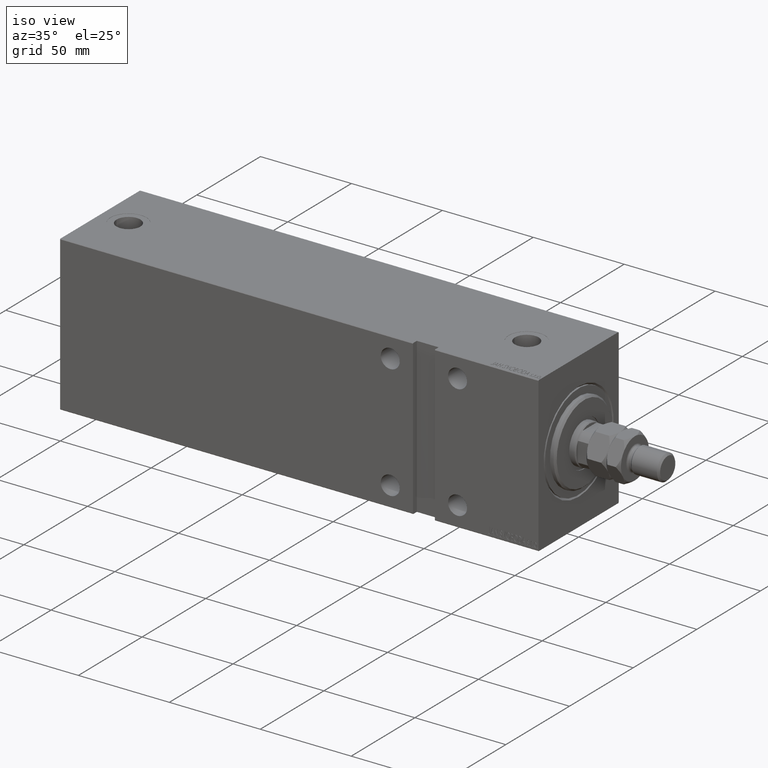
[diagram: clean part render]
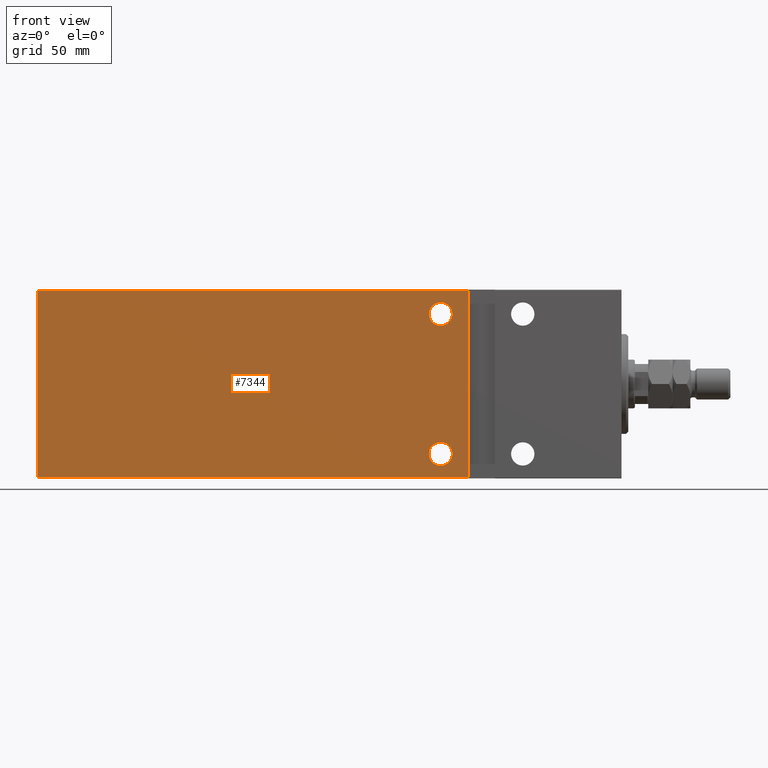
[diagram: tour spotlight — one face highlighted and labeled with its STEP entity id]
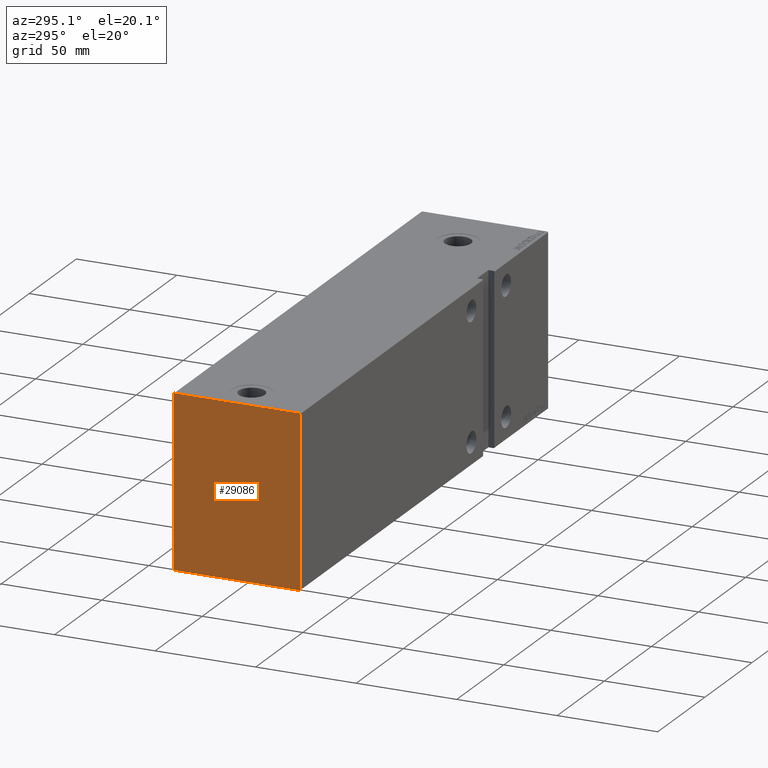
[diagram: tour spotlight — one face highlighted and labeled with its STEP entity id]
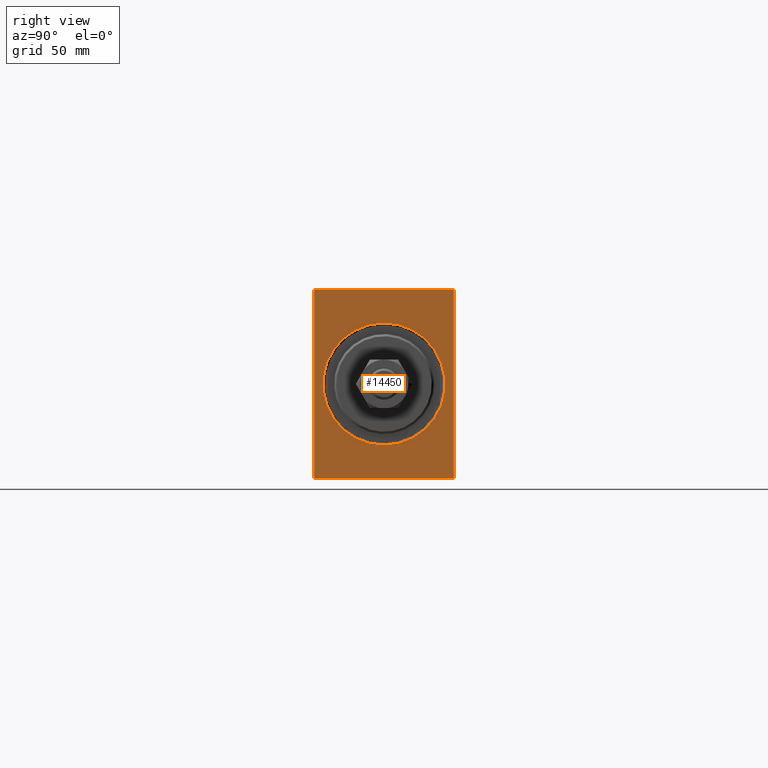
[diagram: tour spotlight — one face highlighted and labeled with its STEP entity id]
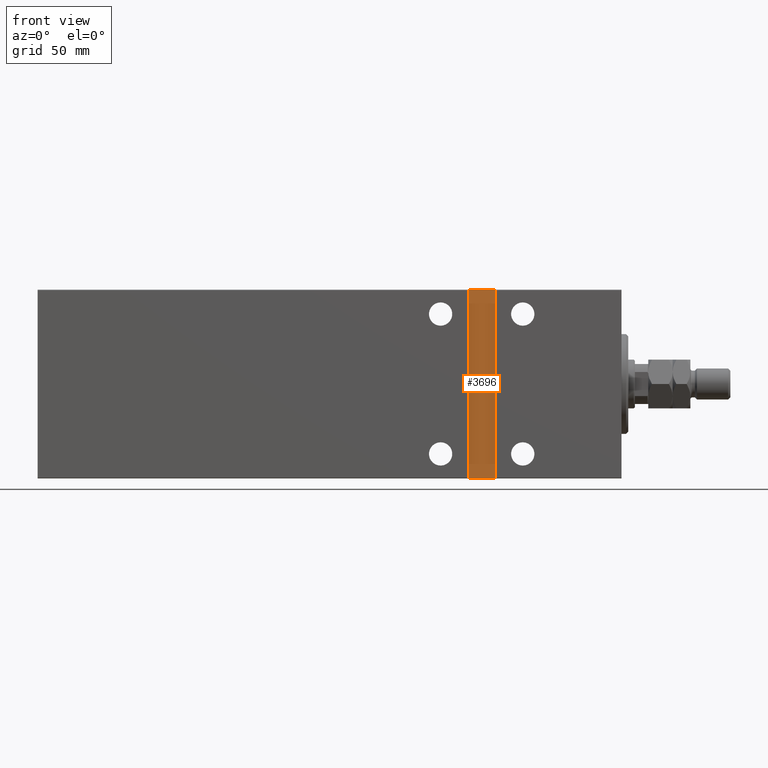
[diagram: tour spotlight — one face highlighted and labeled with its STEP entity id]
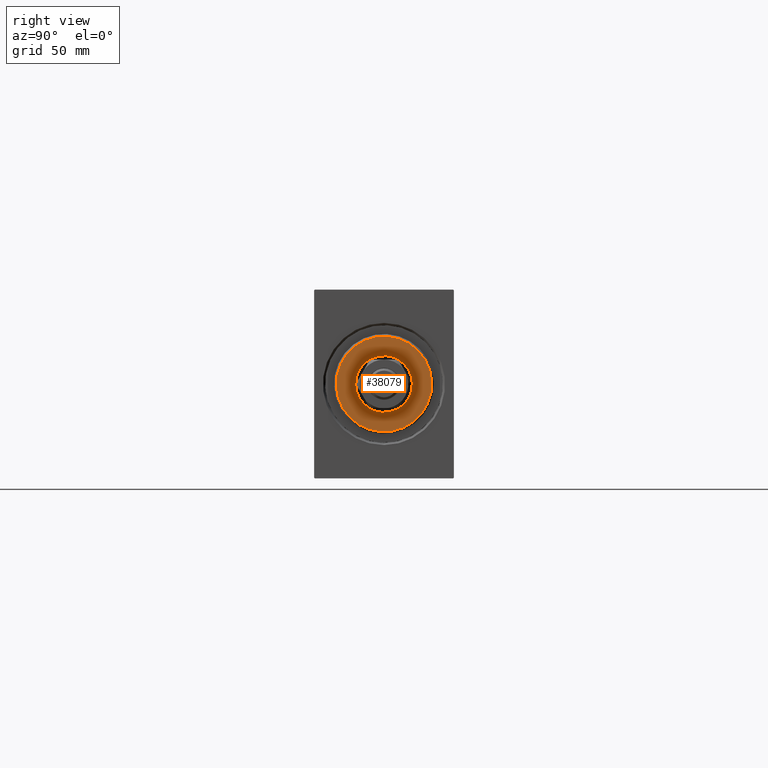
[diagram: tour spotlight — one face highlighted and labeled with its STEP entity id]
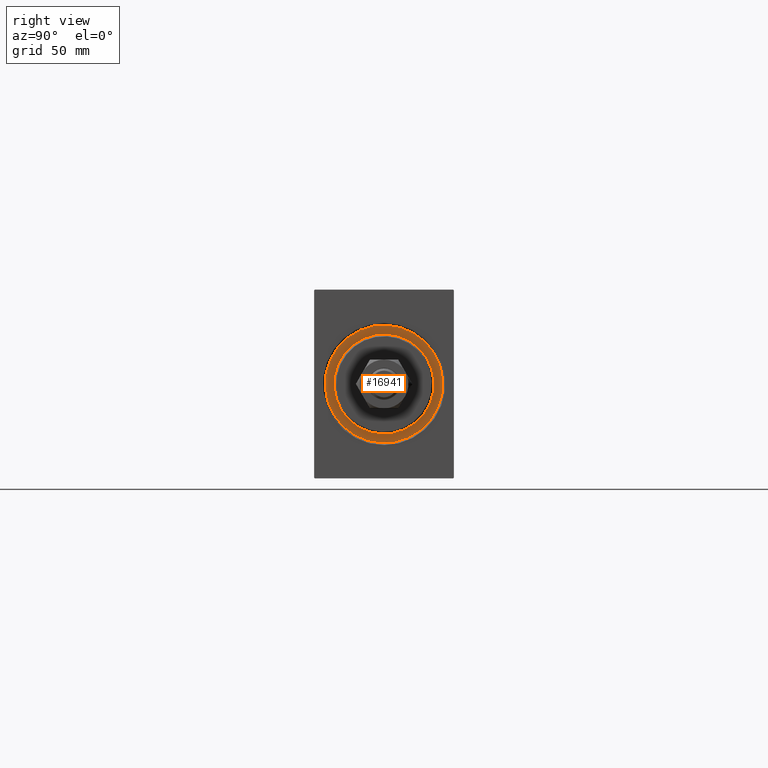
[diagram: tour spotlight — one face highlighted and labeled with its STEP entity id]
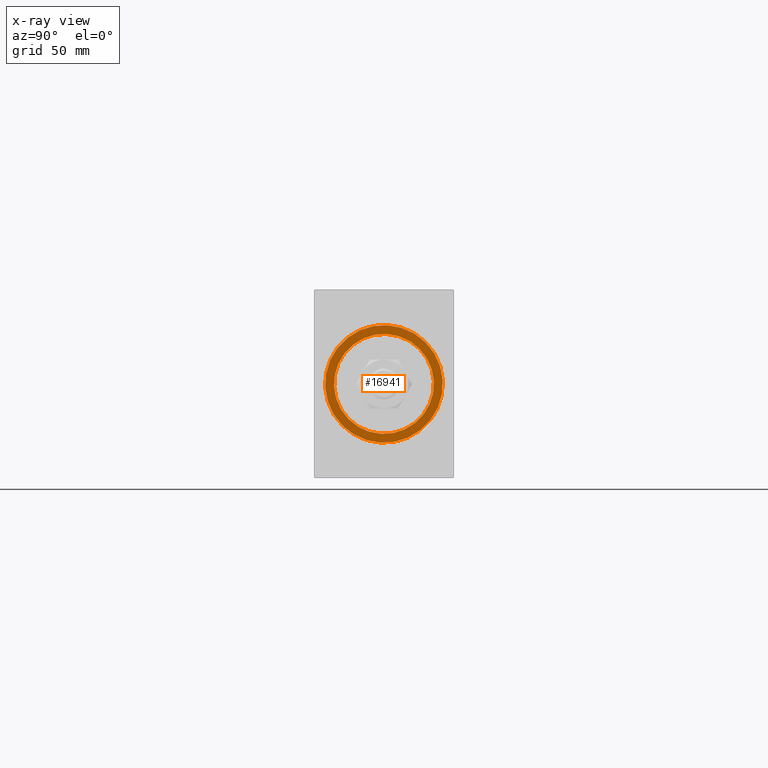
[diagram: x-ray of the same camera — body ghosted, this tour face saturated]
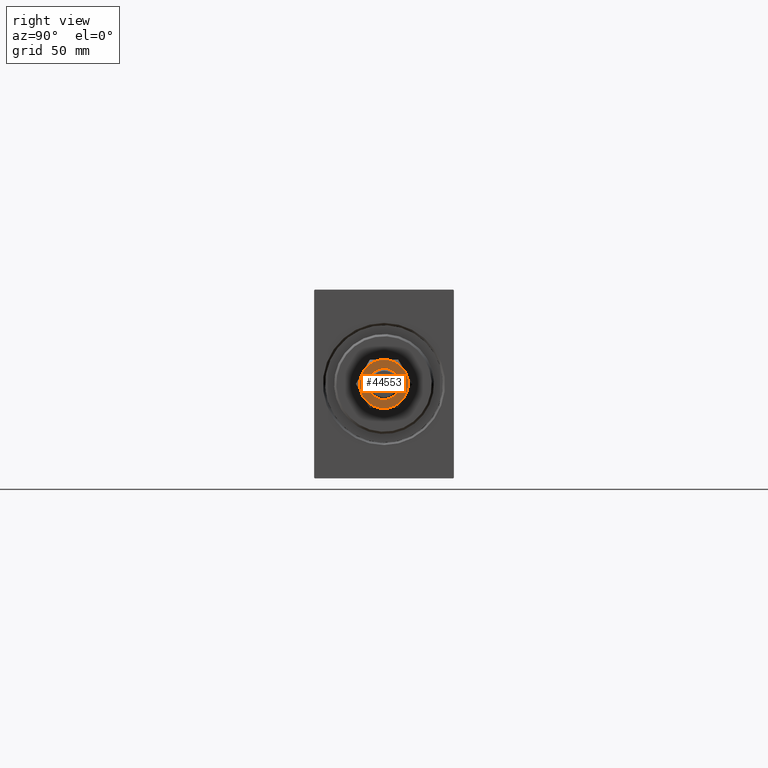
[diagram: tour spotlight — one face highlighted and labeled with its STEP entity id]
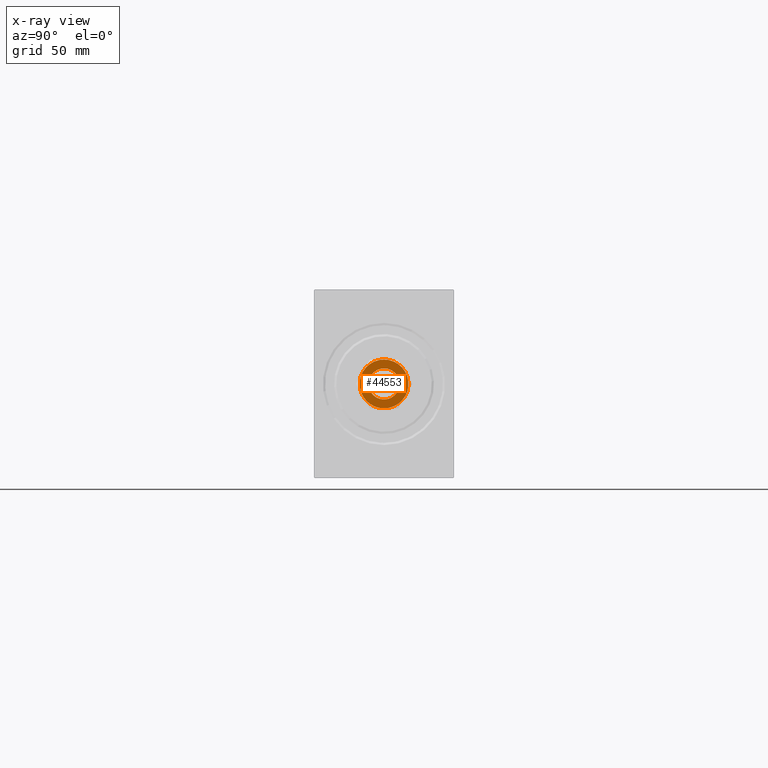
[diagram: x-ray of the same camera — body ghosted, this tour face saturated]
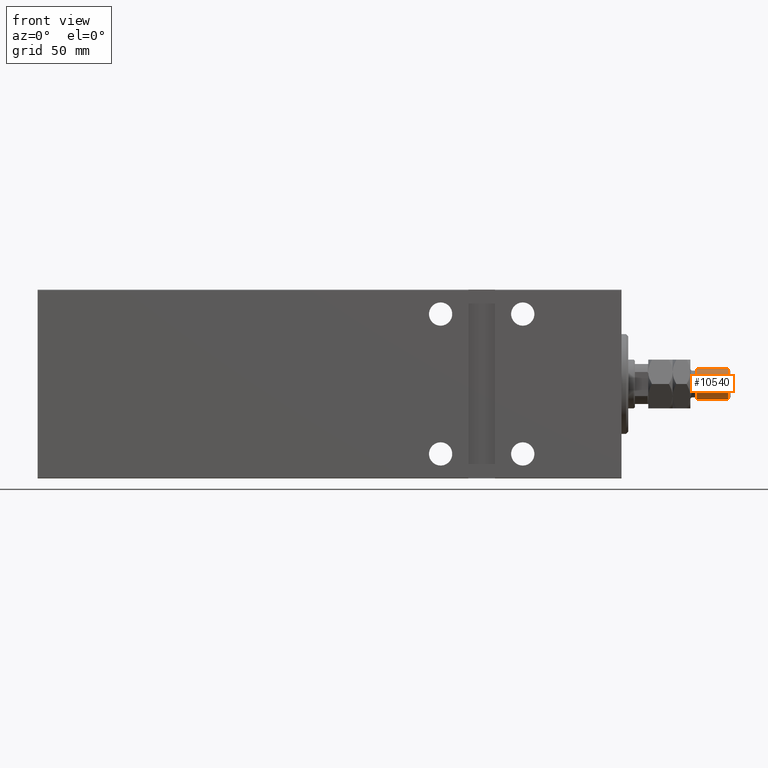
[diagram: tour spotlight — one face highlighted and labeled with its STEP entity id]
A machine part: a face-by-face anatomy tour. The part has 946 B-rep faces; the first image is the clean iso view, then the 8 largest visible faces are spotlighted one at a time (largest first), each with its STEP entity span.

Face 1 — front view, entity #7344. In plain terms, the highlighted planar face has unit normal (-0, 1, -0).
Definition (entity closure, byte-faithful):
#1 = ORIENTED_EDGE ( 'NONE', *, *, #32738, .F. ) ;
#102 = CIRCLE ( 'NONE', #12617, 5.250000000000004441 ) ;
#273 = CARTESIAN_POINT ( 'NONE',  ( 81.49999999999998579, 31.50000000000002842, 36.74999999999999289 ) ) ;
#414 = VERTEX_POINT ( 'NONE', #42294 ) ;
#661 = DIRECTION ( 'NONE',  ( -1.000000000000000000, 0.000000000000000000, 0.000000000000000000 ) ) ;
#1170 = ORIENTED_EDGE ( 'NONE', *, *, #9563, .F. ) ;
#1585 = DIRECTION ( 'NONE',  ( 0.000000000000000000, 0.000000000000000000, 1.000000000000000000 ) ) ;
#1894 = DIRECTION ( 'NONE',  ( 0.000000000000000000, 0.000000000000000000, 1.000000000000000000 ) ) ;
#1980 = DIRECTION ( 'NONE',  ( 0.000000000000000000, 0.000000000000000000, 1.000000000000000000 ) ) ;
#2084 = DIRECTION ( 'NONE',  ( 0.000000000000000000, -1.000000000000000000, -8.163404592832030268E-17 ) ) ;
#3157 = DIRECTION ( 'NONE',  ( 0.000000000000000000, 0.000000000000000000, 1.000000000000000000 ) ) ;
#4521 = VECTOR ( 'NONE', #9454, 1000.000000000000000 ) ;
#4669 = CARTESIAN_POINT ( 'NONE',  ( 69.00000000000001421, 31.50000000000000711, 42.50000000000000711 ) ) ;
#4800 = CARTESIAN_POINT ( 'NONE',  ( 263.0000000000000000, 31.50000000000000711, -42.20000000000001705 ) ) ;
#4820 = VERTEX_POINT ( 'NONE', #24375 ) ;
#5125 = ORIENTED_EDGE ( 'NONE', *, *, #13815, .F. ) ;
#5304 = CARTESIAN_POINT ( 'NONE',  ( 263.0000000000000000, 31.50000000000000711, -42.50000000000000711 ) ) ;
#5324 = CIRCLE ( 'NONE', #33283, 5.250000000000004441 ) ;
#6205 = DIRECTION ( 'NONE',  ( 0.000000000000000000, 8.163404592832030268E-17, -1.000000000000000000 ) ) ;
#6404 = EDGE_CURVE ( 'NONE', #10043, #25531, #14752, .T. ) ;
#7022 = AXIS2_PLACEMENT_3D ( 'NONE', #13472, #34438, #1980 ) ;
#7344 = ADVANCED_FACE ( 'NONE', ( #19576, #40543, #44667 ), #44219, .F. ) ;
#9454 = DIRECTION ( 'NONE',  ( 1.000000000000000000, 0.000000000000000000, 0.000000000000000000 ) ) ;
#9563 = EDGE_CURVE ( 'NONE', #16460, #15773, #16211, .T. ) ;
#10043 = VERTEX_POINT ( 'NONE', #33464 ) ;
#11431 = CIRCLE ( 'NONE', #7022, 5.250000000000004441 ) ;
#12617 = AXIS2_PLACEMENT_3D ( 'NONE', #26751, #15705, #1894 ) ;
#12639 = DIRECTION ( 'NONE',  ( -1.632680918566406300E-16, 0.000000000000000000, -1.000000000000000000 ) ) ;
#13287 = AXIS2_PLACEMENT_3D ( 'NONE', #34025, #20631, #3157 ) ;
#13472 = CARTESIAN_POINT ( 'NONE',  ( 81.49999999999998579, 31.50000000000002842, -31.50000000000001421 ) ) ;
#13815 = EDGE_CURVE ( 'NONE', #414, #16006, #42907, .T. ) ;
#14701 = CARTESIAN_POINT ( 'NONE',  ( 69.00000000000000000, 31.50000000000000711, -42.20000000000001705 ) ) ;
#14752 = LINE ( 'NONE', #25114, #16830 ) ;
#15451 = VECTOR ( 'NONE', #12639, 1000.000000000000000 ) ;
#15614 = LINE ( 'NONE', #4800, #40017 ) ;
#15705 = DIRECTION ( 'NONE',  ( 0.000000000000000000, 1.000000000000000000, 0.000000000000000000 ) ) ;
#15773 = VERTEX_POINT ( 'NONE', #25349 ) ;
#16006 = VERTEX_POINT ( 'NONE', #14701 ) ;
#16211 = CIRCLE ( 'NONE', #13287, 5.250000000000004441 ) ;
#16460 = VERTEX_POINT ( 'NONE', #273 ) ;
#16830 = VECTOR ( 'NONE', #42627, 1000.000000000000000 ) ;
#18347 = AXIS2_PLACEMENT_3D ( 'NONE', #5304, #2084, #6205 ) ;
#19075 = CARTESIAN_POINT ( 'NONE',  ( 81.49999999999998579, 31.50000000000002842, -31.50000000000001421 ) ) ;
#19276 = ORIENTED_EDGE ( 'NONE', *, *, #40255, .T. ) ;
#19576 = FACE_BOUND ( 'NONE', #44355, .T. ) ;
#19831 = VERTEX_POINT ( 'NONE', #28245 ) ;
#20631 = DIRECTION ( 'NONE',  ( 0.000000000000000000, 1.000000000000000000, 0.000000000000000000 ) ) ;
#22082 = DIRECTION ( 'NONE',  ( 0.000000000000000000, 1.000000000000000000, 0.000000000000000000 ) ) ;
#22154 = ORIENTED_EDGE ( 'NONE', *, *, #44506, .F. ) ;
#24375 = CARTESIAN_POINT ( 'NONE',  ( 81.49999999999998579, 31.50000000000002842, -26.25000000000001066 ) ) ;
#24867 = ORIENTED_EDGE ( 'NONE', *, *, #28014, .T. ) ;
#25114 = CARTESIAN_POINT ( 'NONE',  ( 263.0000000000000000, 31.50000000000000711, -42.50000000000000711 ) ) ;
#25349 = CARTESIAN_POINT ( 'NONE',  ( 81.49999999999998579, 31.50000000000002842, 26.24999999999998224 ) ) ;
#25531 = VERTEX_POINT ( 'NONE', #30604 ) ;
#26751 = CARTESIAN_POINT ( 'NONE',  ( 81.49999999999998579, 31.50000000000002842, 31.49999999999998579 ) ) ;
#28014 = EDGE_CURVE ( 'NONE', #414, #25531, #43340, .T. ) ;
#28245 = CARTESIAN_POINT ( 'NONE',  ( 81.49999999999998579, 31.50000000000002842, -36.75000000000002132 ) ) ;
#30604 = CARTESIAN_POINT ( 'NONE',  ( 263.0000000000000000, 31.50000000000000000, 42.20000000000004547 ) ) ;
#31958 = ORIENTED_EDGE ( 'NONE', *, *, #6404, .F. ) ;
#32738 = EDGE_CURVE ( 'NONE', #15773, #16460, #102, .T. ) ;
#33283 = AXIS2_PLACEMENT_3D ( 'NONE', #19075, #22082, #1585 ) ;
#33464 = CARTESIAN_POINT ( 'NONE',  ( 263.0000000000000000, 31.50000000000000711, -42.20000000000001705 ) ) ;
#34025 = CARTESIAN_POINT ( 'NONE',  ( 81.49999999999998579, 31.50000000000002842, 31.49999999999998579 ) ) ;
#34438 = DIRECTION ( 'NONE',  ( 0.000000000000000000, 1.000000000000000000, 0.000000000000000000 ) ) ;
#35542 = EDGE_CURVE ( 'NONE', #4820, #19831, #5324, .T. ) ;
#37581 = EDGE_LOOP ( 'NONE', ( #1170, #1 ) ) ;
#39448 = ORIENTED_EDGE ( 'NONE', *, *, #35542, .F. ) ;
#40017 = VECTOR ( 'NONE', #661, 1000.000000000000000 ) ;
#40255 = EDGE_CURVE ( 'NONE', #10043, #16006, #15614, .T. ) ;
#40543 = FACE_BOUND ( 'NONE', #37581, .T. ) ;
#41260 = CARTESIAN_POINT ( 'NONE',  ( 263.0000000000000000, 31.50000000000000000, 42.20000000000004547 ) ) ;
#42294 = CARTESIAN_POINT ( 'NONE',  ( 69.00000000000001421, 31.50000000000000711, 42.20000000000004547 ) ) ;
#42627 = DIRECTION ( 'NONE',  ( 0.000000000000000000, -8.163404592832031500E-17, 1.000000000000000000 ) ) ;
#42907 = LINE ( 'NONE', #4669, #15451 ) ;
#43340 = LINE ( 'NONE', #41260, #4521 ) ;
#44219 = PLANE ( 'NONE',  #18347 ) ;
#44355 = EDGE_LOOP ( 'NONE', ( #39448, #22154 ) ) ;
#44506 = EDGE_CURVE ( 'NONE', #19831, #4820, #11431, .T. ) ;
#44667 = FACE_OUTER_BOUND ( 'NONE', #45388, .T. ) ;
#45388 = EDGE_LOOP ( 'NONE', ( #31958, #19276, #5125, #24867 ) ) ;

Face 2 — auxiliary view, entity #29086. In plain terms, the highlighted planar face has unit normal (-1, -0, 0).
Definition (entity closure, byte-faithful):
#33 = DIRECTION ( 'NONE',  ( 0.000000000000000000, 0.000000000000000000, -1.000000000000000000 ) ) ;
#576 = LINE ( 'NONE', #15080, #18379 ) ;
#941 = FACE_OUTER_BOUND ( 'NONE', #5048, .T. ) ;
#1468 = CARTESIAN_POINT ( 'NONE',  ( 263.0000000000000000, 31.20000000000003482, 42.50000000000000711 ) ) ;
#3306 = LINE ( 'NONE', #44984, #34599 ) ;
#3385 = CARTESIAN_POINT ( 'NONE',  ( 263.0000000000000000, 31.20000000000001350, -42.50000000000000711 ) ) ;
#4389 = PLANE ( 'NONE',  #44967 ) ;
#5048 = EDGE_LOOP ( 'NONE', ( #24049, #21948, #25502, #21650, #25019, #16153, #27886, #28553 ) ) ;
#5944 = EDGE_CURVE ( 'NONE', #19626, #10043, #41100, .T. ) ;
#5970 = EDGE_CURVE ( 'NONE', #25531, #44709, #9528, .T. ) ;
#6026 = CARTESIAN_POINT ( 'NONE',  ( 263.0000000000000000, -31.19999999999999929, -42.50000000000000711 ) ) ;
#6084 = CARTESIAN_POINT ( 'NONE',  ( 263.0000000000000000, 36.85000000000001563, 36.85000000000001563 ) ) ;
#6404 = EDGE_CURVE ( 'NONE', #10043, #25531, #14752, .T. ) ;
#8785 = EDGE_CURVE ( 'NONE', #29378, #11882, #28455, .T. ) ;
#9528 = LINE ( 'NONE', #6084, #39663 ) ;
#10043 = VERTEX_POINT ( 'NONE', #33464 ) ;
#10282 = VECTOR ( 'NONE', #32596, 1000.000000000000114 ) ;
#10347 = VECTOR ( 'NONE', #33, 1000.000000000000000 ) ;
#10908 = CARTESIAN_POINT ( 'NONE',  ( 263.0000000000000000, -31.49999999999999289, 42.20000000000001705 ) ) ;
#11008 = VECTOR ( 'NONE', #45273, 1000.000000000000000 ) ;
#11882 = VERTEX_POINT ( 'NONE', #10908 ) ;
#12695 = EDGE_CURVE ( 'NONE', #13389, #31672, #40628, .T. ) ;
#13315 = CARTESIAN_POINT ( 'NONE',  ( 263.0000000000000000, -31.49999999999999289, -42.20000000000001705 ) ) ;
#13389 = VERTEX_POINT ( 'NONE', #13315 ) ;
#13636 = EDGE_CURVE ( 'NONE', #44709, #29378, #3306, .T. ) ;
#14175 = CARTESIAN_POINT ( 'NONE',  ( 263.0000000000000000, -36.85000000000037090, 36.84999999999951825 ) ) ;
#14370 = CARTESIAN_POINT ( 'NONE',  ( 263.0000000000000000, -31.20000000000000639, 42.50000000000000711 ) ) ;
#14752 = LINE ( 'NONE', #25114, #16830 ) ;
#14819 = EDGE_CURVE ( 'NONE', #11882, #13389, #38504, .T. ) ;
#15080 = CARTESIAN_POINT ( 'NONE',  ( 263.0000000000000000, -31.49999999999999289, -42.50000000000000711 ) ) ;
#15294 = CARTESIAN_POINT ( 'NONE',  ( 263.0000000000000000, -36.85000000000000142, -36.85000000000000142 ) ) ;
#15653 = DIRECTION ( 'NONE',  ( 0.000000000000000000, 0.000000000000000000, -1.000000000000000000 ) ) ;
#15877 = DIRECTION ( 'NONE',  ( 1.000000000000000000, 0.000000000000000000, 0.000000000000000000 ) ) ;
#16153 = ORIENTED_EDGE ( 'NONE', *, *, #8785, .T. ) ;
#16830 = VECTOR ( 'NONE', #42627, 1000.000000000000000 ) ;
#18379 = VECTOR ( 'NONE', #39039, 1000.000000000000000 ) ;
#19626 = VERTEX_POINT ( 'NONE', #3385 ) ;
#21258 = VECTOR ( 'NONE', #26591, 1000.000000000000114 ) ;
#21650 = ORIENTED_EDGE ( 'NONE', *, *, #5970, .T. ) ;
#21948 = ORIENTED_EDGE ( 'NONE', *, *, #5944, .T. ) ;
#24049 = ORIENTED_EDGE ( 'NONE', *, *, #25095, .T. ) ;
#25019 = ORIENTED_EDGE ( 'NONE', *, *, #13636, .T. ) ;
#25095 = EDGE_CURVE ( 'NONE', #31672, #19626, #576, .T. ) ;
#25114 = CARTESIAN_POINT ( 'NONE',  ( 263.0000000000000000, 31.50000000000000711, -42.50000000000000711 ) ) ;
#25502 = ORIENTED_EDGE ( 'NONE', *, *, #6404, .T. ) ;
#25531 = VERTEX_POINT ( 'NONE', #30604 ) ;
#26591 = DIRECTION ( 'NONE',  ( -0.000000000000000000, 0.7071067811865474617, 0.7071067811865474617 ) ) ;
#27495 = CARTESIAN_POINT ( 'NONE',  ( 263.0000000000000000, 36.85000000000001563, -36.85000000000001563 ) ) ;
#27886 = ORIENTED_EDGE ( 'NONE', *, *, #14819, .T. ) ;
#28455 = LINE ( 'NONE', #14175, #11008 ) ;
#28553 = ORIENTED_EDGE ( 'NONE', *, *, #12695, .T. ) ;
#29086 = ADVANCED_FACE ( 'NONE', ( #941 ), #4389, .T. ) ;
#29378 = VERTEX_POINT ( 'NONE', #14370 ) ;
#30604 = CARTESIAN_POINT ( 'NONE',  ( 263.0000000000000000, 31.50000000000000000, 42.20000000000004547 ) ) ;
#30958 = DIRECTION ( 'NONE',  ( -0.000000000000000000, -0.7071067811865474617, 0.7071067811865474617 ) ) ;
#31578 = CARTESIAN_POINT ( 'NONE',  ( 263.0000000000000000, -31.49999999999999289, 42.50000000000000711 ) ) ;
#31672 = VERTEX_POINT ( 'NONE', #6026 ) ;
#31853 = DIRECTION ( 'NONE',  ( 0.000000000000000000, -1.000000000000000000, 0.000000000000000000 ) ) ;
#32596 = DIRECTION ( 'NONE',  ( -0.000000000000000000, 0.7071067811865474617, -0.7071067811865474617 ) ) ;
#33464 = CARTESIAN_POINT ( 'NONE',  ( 263.0000000000000000, 31.50000000000000711, -42.20000000000001705 ) ) ;
#34599 = VECTOR ( 'NONE', #31853, 1000.000000000000000 ) ;
#38504 = LINE ( 'NONE', #31578, #10347 ) ;
#39039 = DIRECTION ( 'NONE',  ( 0.000000000000000000, 1.000000000000000000, 0.000000000000000000 ) ) ;
#39621 = CARTESIAN_POINT ( 'NONE',  ( 263.0000000000000000, 0.000000000000000000, 0.000000000000000000 ) ) ;
#39663 = VECTOR ( 'NONE', #30958, 1000.000000000000114 ) ;
#40628 = LINE ( 'NONE', #15294, #10282 ) ;
#41100 = LINE ( 'NONE', #27495, #21258 ) ;
#42627 = DIRECTION ( 'NONE',  ( 0.000000000000000000, -8.163404592832031500E-17, 1.000000000000000000 ) ) ;
#44709 = VERTEX_POINT ( 'NONE', #1468 ) ;
#44967 = AXIS2_PLACEMENT_3D ( 'NONE', #39621, #15877, #15653 ) ;
#44984 = CARTESIAN_POINT ( 'NONE',  ( 263.0000000000000000, 31.50000000000000000, 42.50000000000000711 ) ) ;
#45273 = DIRECTION ( 'NONE',  ( 0.000000000000000000, -0.7071067811865393571, -0.7071067811865556774 ) ) ;

Face 3 — right view, entity #14450. In plain terms, the highlighted planar face has unit normal (-1, -0, 0).
Definition (entity closure, byte-faithful):
#460 = CARTESIAN_POINT ( 'NONE',  ( 0.000000000000000000, -31.19999999999999929, -42.50000000000000711 ) ) ;
#694 = EDGE_CURVE ( 'NONE', #44746, #35037, #11079, .T. ) ;
#713 = ORIENTED_EDGE ( 'NONE', *, *, #40253, .T. ) ;
#2205 = CARTESIAN_POINT ( 'NONE',  ( 0.000000000000000000, 31.20000000000001350, -42.50000000000000711 ) ) ;
#2268 = EDGE_CURVE ( 'NONE', #12551, #27018, #5260, .T. ) ;
#2577 = LINE ( 'NONE', #9931, #14768 ) ;
#2873 = VECTOR ( 'NONE', #12465, 1000.000000000000114 ) ;
#3013 = LINE ( 'NONE', #460, #22134 ) ;
#4610 = ORIENTED_EDGE ( 'NONE', *, *, #42628, .F. ) ;
#4840 = ORIENTED_EDGE ( 'NONE', *, *, #6823, .T. ) ;
#5260 = LINE ( 'NONE', #18636, #21126 ) ;
#5341 = LINE ( 'NONE', #26062, #2873 ) ;
#5560 = VERTEX_POINT ( 'NONE', #18313 ) ;
#6823 = EDGE_CURVE ( 'NONE', #45219, #5560, #10222, .T. ) ;
#7087 = VERTEX_POINT ( 'NONE', #34834 ) ;
#7209 = DIRECTION ( 'NONE',  ( 1.000000000000000000, 0.000000000000000000, 0.000000000000000000 ) ) ;
#7451 = DIRECTION ( 'NONE',  ( 0.000000000000000000, 0.000000000000000000, -1.000000000000000000 ) ) ;
#7454 = EDGE_LOOP ( 'NONE', ( #27094, #8227, #13749, #713, #4610, #23867, #10130, #39664 ) ) ;
#7569 = CARTESIAN_POINT ( 'NONE',  ( 0.000000000000000000, 31.50000000000000711, -42.20000000000001705 ) ) ;
#7856 = DIRECTION ( 'NONE',  ( 0.000000000000000000, -8.163404592832031500E-17, 1.000000000000000000 ) ) ;
#8227 = ORIENTED_EDGE ( 'NONE', *, *, #22164, .T. ) ;
#9931 = CARTESIAN_POINT ( 'NONE',  ( 0.000000000000000000, 31.50000000000000000, 42.50000000000000711 ) ) ;
#10130 = ORIENTED_EDGE ( 'NONE', *, *, #27047, .F. ) ;
#10222 = CIRCLE ( 'NONE', #35994, 27.49999999999996803 ) ;
#11079 = LINE ( 'NONE', #31821, #32901 ) ;
#11120 = FACE_BOUND ( 'NONE', #18554, .T. ) ;
#11694 = DIRECTION ( 'NONE',  ( 0.000000000000000000, -0.7071067811865474617, -0.7071067811865474617 ) ) ;
#12465 = DIRECTION ( 'NONE',  ( -0.000000000000000000, 0.7071067811865474617, -0.7071067811865474617 ) ) ;
#12551 = VERTEX_POINT ( 'NONE', #37240 ) ;
#13749 = ORIENTED_EDGE ( 'NONE', *, *, #694, .F. ) ;
#13898 = CARTESIAN_POINT ( 'NONE',  ( 0.000000000000000000, 0.000000000000000000, 0.000000000000000000 ) ) ;
#14450 = ADVANCED_FACE ( 'NONE', ( #11120, #27938 ), #35565, .F. ) ;
#14768 = VECTOR ( 'NONE', #45385, 1000.000000000000000 ) ;
#15965 = CARTESIAN_POINT ( 'NONE',  ( 0.000000000000000000, -31.49999999999999289, -42.20000000000001705 ) ) ;
#17566 = DIRECTION ( 'NONE',  ( 1.000000000000000000, 0.000000000000000000, 0.000000000000000000 ) ) ;
#18313 = CARTESIAN_POINT ( 'NONE',  ( 0.000000000000000000, 0.000000000000000000, 27.49999999999996803 ) ) ;
#18440 = VERTEX_POINT ( 'NONE', #15965 ) ;
#18554 = EDGE_LOOP ( 'NONE', ( #18817, #4840 ) ) ;
#18636 = CARTESIAN_POINT ( 'NONE',  ( 0.000000000000000000, -31.49999999999999289, 42.20000000000001705 ) ) ;
#18817 = ORIENTED_EDGE ( 'NONE', *, *, #25533, .T. ) ;
#19485 = CARTESIAN_POINT ( 'NONE',  ( 0.000000000000000000, 3.367778697655217758E-15, -27.49999999999996803 ) ) ;
#20143 = CARTESIAN_POINT ( 'NONE',  ( 0.000000000000000000, 31.50000000000000000, 42.20000000000004547 ) ) ;
#20230 = VECTOR ( 'NONE', #20889, 1000.000000000000000 ) ;
#20889 = DIRECTION ( 'NONE',  ( 0.000000000000000000, 1.000000000000000000, 0.000000000000000000 ) ) ;
#21126 = VECTOR ( 'NONE', #33368, 1000.000000000000000 ) ;
#21245 = DIRECTION ( 'NONE',  ( 0.000000000000000000, 0.000000000000000000, -1.000000000000000000 ) ) ;
#21577 = LINE ( 'NONE', #25478, #20230 ) ;
#22134 = VECTOR ( 'NONE', #41925, 1000.000000000000114 ) ;
#22164 = EDGE_CURVE ( 'NONE', #37402, #35037, #5341, .T. ) ;
#22769 = CARTESIAN_POINT ( 'NONE',  ( 0.000000000000000000, 0.000000000000000000, 0.000000000000000000 ) ) ;
#23867 = ORIENTED_EDGE ( 'NONE', *, *, #27307, .T. ) ;
#24261 = CARTESIAN_POINT ( 'NONE',  ( 0.000000000000000000, 0.000000000000000000, 0.000000000000000000 ) ) ;
#24576 = VECTOR ( 'NONE', #11694, 1000.000000000000114 ) ;
#25369 = DIRECTION ( 'NONE',  ( 0.000000000000000000, 0.000000000000000000, -1.000000000000000000 ) ) ;
#25478 = CARTESIAN_POINT ( 'NONE',  ( 0.000000000000000000, -31.49999999999999289, -42.50000000000000711 ) ) ;
#25533 = EDGE_CURVE ( 'NONE', #5560, #45219, #44872, .T. ) ;
#26062 = CARTESIAN_POINT ( 'NONE',  ( 0.000000000000000000, 31.20000000000003482, 42.50000000000000711 ) ) ;
#26538 = EDGE_CURVE ( 'NONE', #37402, #27018, #2577, .T. ) ;
#27018 = VERTEX_POINT ( 'NONE', #28842 ) ;
#27047 = EDGE_CURVE ( 'NONE', #12551, #18440, #40118, .T. ) ;
#27094 = ORIENTED_EDGE ( 'NONE', *, *, #26538, .F. ) ;
#27131 = DIRECTION ( 'NONE',  ( 0.000000000000000000, 0.000000000000000000, -1.000000000000000000 ) ) ;
#27307 = EDGE_CURVE ( 'NONE', #7087, #18440, #3013, .T. ) ;
#27938 = FACE_OUTER_BOUND ( 'NONE', #7454, .T. ) ;
#28842 = CARTESIAN_POINT ( 'NONE',  ( 0.000000000000000000, -31.20000000000000639, 42.50000000000000711 ) ) ;
#31118 = CARTESIAN_POINT ( 'NONE',  ( 0.000000000000000000, 31.20000000000003482, 42.50000000000000711 ) ) ;
#31821 = CARTESIAN_POINT ( 'NONE',  ( 0.000000000000000000, 31.50000000000000711, -42.50000000000000711 ) ) ;
#32293 = CARTESIAN_POINT ( 'NONE',  ( 0.000000000000000000, -31.49999999999999289, 42.50000000000000711 ) ) ;
#32901 = VECTOR ( 'NONE', #7856, 1000.000000000000000 ) ;
#33368 = DIRECTION ( 'NONE',  ( -0.000000000000000000, 0.7071067811865393571, 0.7071067811865556774 ) ) ;
#34834 = CARTESIAN_POINT ( 'NONE',  ( 0.000000000000000000, -31.19999999999999929, -42.50000000000000711 ) ) ;
#35037 = VERTEX_POINT ( 'NONE', #20143 ) ;
#35357 = VECTOR ( 'NONE', #25369, 1000.000000000000000 ) ;
#35565 = PLANE ( 'NONE',  #41986 ) ;
#35994 = AXIS2_PLACEMENT_3D ( 'NONE', #13898, #7209, #7451 ) ;
#37240 = CARTESIAN_POINT ( 'NONE',  ( 0.000000000000000000, -31.49999999999999289, 42.20000000000001705 ) ) ;
#37402 = VERTEX_POINT ( 'NONE', #31118 ) ;
#37845 = CARTESIAN_POINT ( 'NONE',  ( 0.000000000000000000, 31.50000000000000711, -42.20000000000001705 ) ) ;
#39354 = LINE ( 'NONE', #7569, #24576 ) ;
#39664 = ORIENTED_EDGE ( 'NONE', *, *, #2268, .T. ) ;
#39725 = AXIS2_PLACEMENT_3D ( 'NONE', #22769, #43963, #27131 ) ;
#40118 = LINE ( 'NONE', #32293, #35357 ) ;
#40253 = EDGE_CURVE ( 'NONE', #44746, #44482, #39354, .T. ) ;
#41925 = DIRECTION ( 'NONE',  ( -0.000000000000000000, -0.7071067811865474617, 0.7071067811865474617 ) ) ;
#41986 = AXIS2_PLACEMENT_3D ( 'NONE', #24261, #17566, #21245 ) ;
#42628 = EDGE_CURVE ( 'NONE', #7087, #44482, #21577, .T. ) ;
#43963 = DIRECTION ( 'NONE',  ( 1.000000000000000000, 0.000000000000000000, 0.000000000000000000 ) ) ;
#44482 = VERTEX_POINT ( 'NONE', #2205 ) ;
#44746 = VERTEX_POINT ( 'NONE', #37845 ) ;
#44872 = CIRCLE ( 'NONE', #39725, 27.49999999999996803 ) ;
#45219 = VERTEX_POINT ( 'NONE', #19485 ) ;
#45385 = DIRECTION ( 'NONE',  ( 0.000000000000000000, -1.000000000000000000, 0.000000000000000000 ) ) ;

Face 4 — front view, entity #3696. In plain terms, the highlighted planar face has unit normal (0, -1, -0).
Definition (entity closure, byte-faithful):
#1627 = VERTEX_POINT ( 'NONE', #8428 ) ;
#1893 = DIRECTION ( 'NONE',  ( 1.000000000000000000, 0.000000000000000000, 0.000000000000000000 ) ) ;
#3600 = LINE ( 'NONE', #7051, #31268 ) ;
#3696 = ADVANCED_FACE ( 'NONE', ( #38929 ), #24422, .T. ) ;
#3997 = ORIENTED_EDGE ( 'NONE', *, *, #28745, .F. ) ;
#7051 = CARTESIAN_POINT ( 'NONE',  ( 57.00000000000000000, 28.50000000000000711, 42.50000000000000711 ) ) ;
#7140 = CARTESIAN_POINT ( 'NONE',  ( 0.000000000000000000, 28.50000000000000711, 0.000000000000000000 ) ) ;
#8368 = EDGE_LOOP ( 'NONE', ( #24772, #3997, #15855, #23501 ) ) ;
#8428 = CARTESIAN_POINT ( 'NONE',  ( 57.00000000000000000, 28.50000000000000711, 42.50000000000000711 ) ) ;
#8844 = VECTOR ( 'NONE', #36314, 1000.000000000000000 ) ;
#9776 = EDGE_CURVE ( 'NONE', #18038, #33113, #22009, .T. ) ;
#10953 = DIRECTION ( 'NONE',  ( 1.000000000000000000, 0.000000000000000000, 0.000000000000000000 ) ) ;
#12860 = CARTESIAN_POINT ( 'NONE',  ( 56.99999999999998579, 28.50000000000000711, -42.50000000000000711 ) ) ;
#14273 = DIRECTION ( 'NONE',  ( -0.000000000000000000, 1.000000000000000000, 0.000000000000000000 ) ) ;
#14859 = DIRECTION ( 'NONE',  ( -1.632680918566406300E-16, 0.000000000000000000, -1.000000000000000000 ) ) ;
#15855 = ORIENTED_EDGE ( 'NONE', *, *, #43519, .T. ) ;
#16157 = LINE ( 'NONE', #37357, #39633 ) ;
#17733 = DIRECTION ( 'NONE',  ( 0.000000000000000000, -0.000000000000000000, 1.000000000000000000 ) ) ;
#18038 = VERTEX_POINT ( 'NONE', #24571 ) ;
#18770 = LINE ( 'NONE', #39285, #30258 ) ;
#22009 = LINE ( 'NONE', #29620, #8844 ) ;
#22169 = EDGE_CURVE ( 'NONE', #28349, #33113, #16157, .T. ) ;
#23501 = ORIENTED_EDGE ( 'NONE', *, *, #9776, .T. ) ;
#24422 = PLANE ( 'NONE',  #34443 ) ;
#24571 = CARTESIAN_POINT ( 'NONE',  ( 69.00000000000001421, 28.50000000000000711, 42.50000000000000711 ) ) ;
#24772 = ORIENTED_EDGE ( 'NONE', *, *, #22169, .F. ) ;
#28349 = VERTEX_POINT ( 'NONE', #12860 ) ;
#28745 = EDGE_CURVE ( 'NONE', #1627, #28349, #18770, .T. ) ;
#29620 = CARTESIAN_POINT ( 'NONE',  ( 69.00000000000001421, 28.50000000000000711, 42.50000000000000711 ) ) ;
#30258 = VECTOR ( 'NONE', #14859, 1000.000000000000000 ) ;
#31268 = VECTOR ( 'NONE', #10953, 1000.000000000000000 ) ;
#31512 = CARTESIAN_POINT ( 'NONE',  ( 69.00000000000002842, 28.50000000000000355, -42.50000000000000711 ) ) ;
#33113 = VERTEX_POINT ( 'NONE', #31512 ) ;
#34443 = AXIS2_PLACEMENT_3D ( 'NONE', #7140, #14273, #17733 ) ;
#36314 = DIRECTION ( 'NONE',  ( -1.632680918566406300E-16, 0.000000000000000000, -1.000000000000000000 ) ) ;
#37357 = CARTESIAN_POINT ( 'NONE',  ( 56.99999999999998579, 28.50000000000000711, -42.50000000000000711 ) ) ;
#38929 = FACE_OUTER_BOUND ( 'NONE', #8368, .T. ) ;
#39285 = CARTESIAN_POINT ( 'NONE',  ( 57.00000000000000000, 28.50000000000000711, 42.50000000000000711 ) ) ;
#39633 = VECTOR ( 'NONE', #1893, 1000.000000000000000 ) ;
#43519 = EDGE_CURVE ( 'NONE', #1627, #18038, #3600, .T. ) ;

Face 5 — right view, entity #38079. In plain terms, the highlighted planar face has unit normal (1, -0, -0).
Definition (entity closure, byte-faithful):
#1491 = DIRECTION ( 'NONE',  ( 1.000000000000000000, 0.000000000000000000, 0.000000000000000000 ) ) ;
#2644 = VERTEX_POINT ( 'NONE', #14267 ) ;
#3233 = AXIS2_PLACEMENT_3D ( 'NONE', #8694, #8928, #22980 ) ;
#4212 = VERTEX_POINT ( 'NONE', #27932 ) ;
#8694 = CARTESIAN_POINT ( 'NONE',  ( 3.000000000000000000, 0.000000000000000000, 0.000000000000000000 ) ) ;
#8928 = DIRECTION ( 'NONE',  ( 1.000000000000000000, -0.000000000000000000, 0.000000000000000000 ) ) ;
#8963 = PLANE ( 'NONE',  #34057 ) ;
#10340 = EDGE_CURVE ( 'NONE', #15076, #29205, #39765, .T. ) ;
#11972 = CARTESIAN_POINT ( 'NONE',  ( 3.000000000000000000, 0.000000000000000000, 0.000000000000000000 ) ) ;
#14267 = CARTESIAN_POINT ( 'NONE',  ( 3.000000000000000000, 0.000000000000000000, 21.50000000000001066 ) ) ;
#15076 = VERTEX_POINT ( 'NONE', #23248 ) ;
#15534 = DIRECTION ( 'NONE',  ( 0.000000000000000000, 0.000000000000000000, -1.000000000000000000 ) ) ;
#16207 = AXIS2_PLACEMENT_3D ( 'NONE', #44306, #1491, #15534 ) ;
#16335 = DIRECTION ( 'NONE',  ( 1.000000000000000000, -0.000000000000000000, 0.000000000000000000 ) ) ;
#18665 = ORIENTED_EDGE ( 'NONE', *, *, #10340, .F. ) ;
#19304 = AXIS2_PLACEMENT_3D ( 'NONE', #11972, #37713, #44826 ) ;
#19883 = AXIS2_PLACEMENT_3D ( 'NONE', #39876, #32964, #37787 ) ;
#20377 = ORIENTED_EDGE ( 'NONE', *, *, #40014, .T. ) ;
#20452 = CARTESIAN_POINT ( 'NONE',  ( 3.000000000000000000, 1.561424668912875111E-15, 12.75000000000000000 ) ) ;
#22980 = DIRECTION ( 'NONE',  ( 0.000000000000000000, 0.000000000000000000, -1.000000000000000000 ) ) ;
#23017 = CARTESIAN_POINT ( 'NONE',  ( 3.000000000000000000, 0.000000000000000000, 0.000000000000000000 ) ) ;
#23248 = CARTESIAN_POINT ( 'NONE',  ( 3.000000000000000000, 0.000000000000000000, -12.75000000000000000 ) ) ;
#25331 = EDGE_CURVE ( 'NONE', #29205, #15076, #33878, .T. ) ;
#27932 = CARTESIAN_POINT ( 'NONE',  ( 3.000000000000000000, 2.694222958124177993E-15, -21.50000000000001066 ) ) ;
#28770 = CIRCLE ( 'NONE', #19304, 21.50000000000001066 ) ;
#29205 = VERTEX_POINT ( 'NONE', #20452 ) ;
#31024 = ORIENTED_EDGE ( 'NONE', *, *, #25331, .F. ) ;
#32001 = EDGE_CURVE ( 'NONE', #2644, #4212, #28770, .T. ) ;
#32964 = DIRECTION ( 'NONE',  ( 1.000000000000000000, 0.000000000000000000, 0.000000000000000000 ) ) ;
#33388 = FACE_OUTER_BOUND ( 'NONE', #44945, .T. ) ;
#33596 = EDGE_LOOP ( 'NONE', ( #18665, #31024 ) ) ;
#33878 = CIRCLE ( 'NONE', #16207, 12.75000000000000000 ) ;
#34057 = AXIS2_PLACEMENT_3D ( 'NONE', #23017, #16335, #37082 ) ;
#37082 = DIRECTION ( 'NONE',  ( 0.000000000000000000, 0.000000000000000000, -1.000000000000000000 ) ) ;
#37713 = DIRECTION ( 'NONE',  ( 1.000000000000000000, -0.000000000000000000, 0.000000000000000000 ) ) ;
#37787 = DIRECTION ( 'NONE',  ( 0.000000000000000000, 0.000000000000000000, -1.000000000000000000 ) ) ;
#38079 = ADVANCED_FACE ( 'NONE', ( #33388, #40754 ), #8963, .T. ) ;
#39693 = ORIENTED_EDGE ( 'NONE', *, *, #32001, .T. ) ;
#39765 = CIRCLE ( 'NONE', #19883, 12.75000000000000000 ) ;
#39876 = CARTESIAN_POINT ( 'NONE',  ( 3.000000000000000000, 0.000000000000000000, 0.000000000000000000 ) ) ;
#40014 = EDGE_CURVE ( 'NONE', #4212, #2644, #42944, .T. ) ;
#40754 = FACE_BOUND ( 'NONE', #33596, .T. ) ;
#42944 = CIRCLE ( 'NONE', #3233, 21.50000000000001066 ) ;
#44306 = CARTESIAN_POINT ( 'NONE',  ( 3.000000000000000000, 0.000000000000000000, 0.000000000000000000 ) ) ;
#44826 = DIRECTION ( 'NONE',  ( 0.000000000000000000, 0.000000000000000000, -1.000000000000000000 ) ) ;
#44945 = EDGE_LOOP ( 'NONE', ( #39693, #20377 ) ) ;

Face 6 — right view, entity #16941. An x-ray twin of the same camera follows (body ghosted, this face saturated) — the face is partly hidden behind the body. In plain terms, the highlighted planar face has unit normal (-1, 0, 0).
Definition (entity closure, byte-faithful):
#164 = PLANE ( 'NONE',  #11141 ) ;
#737 = DIRECTION ( 'NONE',  ( 1.000000000000000000, -0.000000000000000000, 0.000000000000000000 ) ) ;
#2037 = FACE_BOUND ( 'NONE', #9779, .T. ) ;
#2527 = ORIENTED_EDGE ( 'NONE', *, *, #18533, .F. ) ;
#3915 = AXIS2_PLACEMENT_3D ( 'NONE', #20992, #737, #32059 ) ;
#5699 = DIRECTION ( 'NONE',  ( -1.000000000000000000, 0.000000000000000000, 0.000000000000000000 ) ) ;
#7194 = VERTEX_POINT ( 'NONE', #14072 ) ;
#7506 = ORIENTED_EDGE ( 'NONE', *, *, #40042, .F. ) ;
#7703 = DIRECTION ( 'NONE',  ( 1.000000000000000000, -0.000000000000000000, 0.000000000000000000 ) ) ;
#7929 = CARTESIAN_POINT ( 'NONE',  ( 0.000000000000000000, 0.000000000000000000, 0.000000000000000000 ) ) ;
#9107 = CIRCLE ( 'NONE', #34859, 26.50000000000000355 ) ;
#9779 = EDGE_LOOP ( 'NONE', ( #26704, #43816 ) ) ;
#11141 = AXIS2_PLACEMENT_3D ( 'NONE', #31479, #38176, #34951 ) ;
#14072 = CARTESIAN_POINT ( 'NONE',  ( 0.000000000000000000, 3.245314017740486554E-15, 26.50000000000000355 ) ) ;
#14128 = CIRCLE ( 'NONE', #17061, 26.50000000000000355 ) ;
#16081 = CIRCLE ( 'NONE', #26391, 22.50000000000000355 ) ;
#16941 = ADVANCED_FACE ( 'NONE', ( #2037, #30127 ), #164, .F. ) ;
#17061 = AXIS2_PLACEMENT_3D ( 'NONE', #20097, #30701, #22878 ) ;
#18533 = EDGE_CURVE ( 'NONE', #7194, #28217, #14128, .T. ) ;
#20097 = CARTESIAN_POINT ( 'NONE',  ( 0.000000000000000000, 0.000000000000000000, 0.000000000000000000 ) ) ;
#20992 = CARTESIAN_POINT ( 'NONE',  ( 0.000000000000000000, 0.000000000000000000, 0.000000000000000000 ) ) ;
#21093 = EDGE_CURVE ( 'NONE', #36305, #31900, #26690, .T. ) ;
#21478 = EDGE_CURVE ( 'NONE', #31900, #36305, #16081, .T. ) ;
#22878 = DIRECTION ( 'NONE',  ( 0.000000000000000000, 0.000000000000000000, 1.000000000000000000 ) ) ;
#25547 = CARTESIAN_POINT ( 'NONE',  ( 0.000000000000000000, 0.000000000000000000, -26.50000000000000355 ) ) ;
#26391 = AXIS2_PLACEMENT_3D ( 'NONE', #7929, #7703, #32594 ) ;
#26690 = CIRCLE ( 'NONE', #3915, 22.50000000000000355 ) ;
#26704 = ORIENTED_EDGE ( 'NONE', *, *, #21093, .F. ) ;
#28217 = VERTEX_POINT ( 'NONE', #25547 ) ;
#30127 = FACE_OUTER_BOUND ( 'NONE', #33792, .T. ) ;
#30479 = CARTESIAN_POINT ( 'NONE',  ( 0.000000000000000000, 0.000000000000000000, 22.50000000000000355 ) ) ;
#30701 = DIRECTION ( 'NONE',  ( -1.000000000000000000, 0.000000000000000000, 0.000000000000000000 ) ) ;
#31479 = CARTESIAN_POINT ( 'NONE',  ( 0.000000000000000000, 0.000000000000000000, 0.000000000000000000 ) ) ;
#31900 = VERTEX_POINT ( 'NONE', #39404 ) ;
#32059 = DIRECTION ( 'NONE',  ( 0.000000000000000000, 0.000000000000000000, -1.000000000000000000 ) ) ;
#32594 = DIRECTION ( 'NONE',  ( 0.000000000000000000, 0.000000000000000000, -1.000000000000000000 ) ) ;
#33792 = EDGE_LOOP ( 'NONE', ( #7506, #2527 ) ) ;
#34859 = AXIS2_PLACEMENT_3D ( 'NONE', #40722, #5699, #40948 ) ;
#34951 = DIRECTION ( 'NONE',  ( 0.000000000000000000, 0.000000000000000000, 1.000000000000000000 ) ) ;
#36305 = VERTEX_POINT ( 'NONE', #30479 ) ;
#38176 = DIRECTION ( 'NONE',  ( -1.000000000000000000, 0.000000000000000000, 0.000000000000000000 ) ) ;
#39404 = CARTESIAN_POINT ( 'NONE',  ( 0.000000000000000000, 2.755455298081545172E-15, -22.50000000000000355 ) ) ;
#40042 = EDGE_CURVE ( 'NONE', #28217, #7194, #9107, .T. ) ;
#40722 = CARTESIAN_POINT ( 'NONE',  ( 0.000000000000000000, 0.000000000000000000, 0.000000000000000000 ) ) ;
#40948 = DIRECTION ( 'NONE',  ( 0.000000000000000000, 0.000000000000000000, 1.000000000000000000 ) ) ;
#43816 = ORIENTED_EDGE ( 'NONE', *, *, #21478, .F. ) ;

Face 7 — right view, entity #44553. An x-ray twin of the same camera follows (body ghosted, this face saturated) — the face is partly hidden behind the body. In plain terms, the highlighted planar face has unit normal (1, 0, -0).
Definition (entity closure, byte-faithful):
#42 = DIRECTION ( 'NONE',  ( -0.000000000000000000, 0.000000000000000000, -1.000000000000000000 ) ) ;
#178 = EDGE_CURVE ( 'NONE', #14204, #13679, #29933, .T. ) ;
#535 = DIRECTION ( 'NONE',  ( 1.000000000000000000, 0.000000000000000000, 0.000000000000000000 ) ) ;
#727 = DIRECTION ( 'NONE',  ( 0.000000000000000000, -0.000000000000000000, 1.000000000000000000 ) ) ;
#752 = EDGE_CURVE ( 'NONE', #44268, #14204, #36589, .T. ) ;
#789 = EDGE_CURVE ( 'NONE', #39346, #6474, #42455, .T. ) ;
#893 = DIRECTION ( 'NONE',  ( 1.000000000000000000, 0.000000000000000000, 0.000000000000000000 ) ) ;
#916 = ORIENTED_EDGE ( 'NONE', *, *, #789, .T. ) ;
#2922 = CARTESIAN_POINT ( 'NONE',  ( 7.000000000000000888, 0.000000000000000000, 19.00000000000000000 ) ) ;
#3552 = FACE_BOUND ( 'NONE', #36805, .T. ) ;
#3742 = ORIENTED_EDGE ( 'NONE', *, *, #178, .T. ) ;
#3851 = AXIS2_PLACEMENT_3D ( 'NONE', #40224, #26379, #29858 ) ;
#4222 = EDGE_LOOP ( 'NONE', ( #17071, #3742, #28161, #12963, #11738, #10189 ) ) ;
#4284 = VERTEX_POINT ( 'NONE', #9932 ) ;
#6081 = EDGE_CURVE ( 'NONE', #4284, #14920, #15392, .T. ) ;
#6305 = AXIS2_PLACEMENT_3D ( 'NONE', #10456, #28416, #45459 ) ;
#6474 = VERTEX_POINT ( 'NONE', #26469 ) ;
#6589 = CARTESIAN_POINT ( 'NONE',  ( 0.000000000000000000, 0.000000000000000000, 19.00000000000000000 ) ) ;
#7990 = EDGE_CURVE ( 'NONE', #14920, #44268, #8776, .T. ) ;
#8018 = DIRECTION ( 'NONE',  ( 0.000000000000000000, 0.000000000000000000, 1.000000000000000000 ) ) ;
#8776 = CIRCLE ( 'NONE', #40419, 10.99999999999999289 ) ;
#9932 = CARTESIAN_POINT ( 'NONE',  ( -10.99999999999999289, 0.000000000000000000, 19.00000000000000000 ) ) ;
#10189 = ORIENTED_EDGE ( 'NONE', *, *, #7990, .T. ) ;
#10449 = EDGE_CURVE ( 'NONE', #20058, #4284, #43443, .T. ) ;
#10456 = CARTESIAN_POINT ( 'NONE',  ( 0.000000000000000000, 0.000000000000000000, 19.00000000000000000 ) ) ;
#11176 = CIRCLE ( 'NONE', #3851, 7.000000000000000888 ) ;
#11534 = CARTESIAN_POINT ( 'NONE',  ( 0.000000000000000000, 0.000000000000000000, 19.00000000000000000 ) ) ;
#11738 = ORIENTED_EDGE ( 'NONE', *, *, #6081, .T. ) ;
#11745 = CARTESIAN_POINT ( 'NONE',  ( -5.500000000000000000, -9.526279441628824785, 19.00000000000000000 ) ) ;
#12892 = CARTESIAN_POINT ( 'NONE',  ( 0.000000000000000000, 0.000000000000000000, 19.00000000000000000 ) ) ;
#12963 = ORIENTED_EDGE ( 'NONE', *, *, #10449, .T. ) ;
#13065 = CARTESIAN_POINT ( 'NONE',  ( 5.499999999999998224, -9.526279441628817679, 19.00000000000000000 ) ) ;
#13679 = VERTEX_POINT ( 'NONE', #41766 ) ;
#14199 = EDGE_CURVE ( 'NONE', #13679, #20058, #31693, .T. ) ;
#14204 = VERTEX_POINT ( 'NONE', #37710 ) ;
#14920 = VERTEX_POINT ( 'NONE', #11745 ) ;
#15392 = CIRCLE ( 'NONE', #27874, 10.99999999999999289 ) ;
#17071 = ORIENTED_EDGE ( 'NONE', *, *, #752, .T. ) ;
#17826 = FACE_OUTER_BOUND ( 'NONE', #4222, .T. ) ;
#18192 = EDGE_CURVE ( 'NONE', #6474, #39346, #11176, .T. ) ;
#20058 = VERTEX_POINT ( 'NONE', #39014 ) ;
#20624 = DIRECTION ( 'NONE',  ( 0.000000000000000000, -0.000000000000000000, 1.000000000000000000 ) ) ;
#20637 = AXIS2_PLACEMENT_3D ( 'NONE', #12892, #22804, #37556 ) ;
#22804 = DIRECTION ( 'NONE',  ( 0.000000000000000000, -0.000000000000000000, 1.000000000000000000 ) ) ;
#23641 = DIRECTION ( 'NONE',  ( 1.000000000000000000, 0.000000000000000000, 0.000000000000000000 ) ) ;
#26379 = DIRECTION ( 'NONE',  ( -0.000000000000000000, 0.000000000000000000, -1.000000000000000000 ) ) ;
#26469 = CARTESIAN_POINT ( 'NONE',  ( -7.000000000000000888, 8.572527594031474176E-16, 19.00000000000000000 ) ) ;
#27720 = AXIS2_PLACEMENT_3D ( 'NONE', #43711, #8018, #893 ) ;
#27874 = AXIS2_PLACEMENT_3D ( 'NONE', #38769, #27937, #535 ) ;
#27937 = DIRECTION ( 'NONE',  ( 0.000000000000000000, -0.000000000000000000, 1.000000000000000000 ) ) ;
#28161 = ORIENTED_EDGE ( 'NONE', *, *, #14199, .T. ) ;
#28416 = DIRECTION ( 'NONE',  ( 0.000000000000000000, -0.000000000000000000, 1.000000000000000000 ) ) ;
#29858 = DIRECTION ( 'NONE',  ( 1.000000000000000000, 0.000000000000000000, 0.000000000000000000 ) ) ;
#29933 = CIRCLE ( 'NONE', #27720, 10.99999999999999289 ) ;
#29968 = AXIS2_PLACEMENT_3D ( 'NONE', #11534, #42, #38955 ) ;
#30221 = AXIS2_PLACEMENT_3D ( 'NONE', #6589, #20624, #23641 ) ;
#31588 = DIRECTION ( 'NONE',  ( 1.000000000000000000, 0.000000000000000000, 0.000000000000000000 ) ) ;
#31693 = CIRCLE ( 'NONE', #30221, 10.99999999999999289 ) ;
#33067 = ORIENTED_EDGE ( 'NONE', *, *, #18192, .T. ) ;
#33215 = DIRECTION ( 'NONE',  ( 0.000000000000000000, -0.000000000000000000, 1.000000000000000000 ) ) ;
#35840 = CARTESIAN_POINT ( 'NONE',  ( 0.000000000000000000, 0.000000000000000000, 19.00000000000000000 ) ) ;
#36589 = CIRCLE ( 'NONE', #38062, 10.99999999999999289 ) ;
#36805 = EDGE_LOOP ( 'NONE', ( #916, #33067 ) ) ;
#37556 = DIRECTION ( 'NONE',  ( 1.000000000000000000, 0.000000000000000000, 0.000000000000000000 ) ) ;
#37710 = CARTESIAN_POINT ( 'NONE',  ( 10.99999999999999289, 1.502314598737159031E-15, 19.00000000000000000 ) ) ;
#38062 = AXIS2_PLACEMENT_3D ( 'NONE', #39197, #727, #31588 ) ;
#38769 = CARTESIAN_POINT ( 'NONE',  ( 0.000000000000000000, 0.000000000000000000, 19.00000000000000000 ) ) ;
#38955 = DIRECTION ( 'NONE',  ( 1.000000000000000000, 0.000000000000000000, 0.000000000000000000 ) ) ;
#39014 = CARTESIAN_POINT ( 'NONE',  ( -5.499999999999997335, 9.526279441628819455, 19.00000000000000000 ) ) ;
#39019 = PLANE ( 'NONE',  #6305 ) ;
#39197 = CARTESIAN_POINT ( 'NONE',  ( 0.000000000000000000, 0.000000000000000000, 19.00000000000000000 ) ) ;
#39346 = VERTEX_POINT ( 'NONE', #2922 ) ;
#40224 = CARTESIAN_POINT ( 'NONE',  ( 0.000000000000000000, 0.000000000000000000, 19.00000000000000000 ) ) ;
#40419 = AXIS2_PLACEMENT_3D ( 'NONE', #35840, #33215, #43799 ) ;
#41766 = CARTESIAN_POINT ( 'NONE',  ( 5.499999999999999112, 9.526279441628817679, 19.00000000000000000 ) ) ;
#42455 = CIRCLE ( 'NONE', #29968, 7.000000000000000888 ) ;
#43443 = CIRCLE ( 'NONE', #20637, 10.99999999999999289 ) ;
#43711 = CARTESIAN_POINT ( 'NONE',  ( 0.000000000000000000, 0.000000000000000000, 19.00000000000000000 ) ) ;
#43799 = DIRECTION ( 'NONE',  ( 1.000000000000000000, 0.000000000000000000, 0.000000000000000000 ) ) ;
#44268 = VERTEX_POINT ( 'NONE', #13065 ) ;
#44553 = ADVANCED_FACE ( 'NONE', ( #3552, #17826 ), #39019, .T. ) ;
#45459 = DIRECTION ( 'NONE',  ( 1.000000000000000000, 0.000000000000000000, -0.000000000000000000 ) ) ;

Face 8 — front view, entity #10540. In plain terms, the highlighted cylindrical surface (edge-blend (fillet) strip) has radius 7 mm, axis along (-1, -0, 0).
Definition (entity closure, byte-faithful):
#310 = EDGE_CURVE ( 'NONE', #44805, #25950, #12604, .T. ) ;
#474 = LINE ( 'NONE', #14502, #9796 ) ;
#3751 = EDGE_CURVE ( 'NONE', #25950, #23143, #41800, .T. ) ;
#7207 = EDGE_LOOP ( 'NONE', ( #45154, #11451, #10539, #11547 ) ) ;
#7336 = CARTESIAN_POINT ( 'NONE',  ( 0.000000000000000000, 0.000000000000000000, 37.00000000000000000 ) ) ;
#7865 = VECTOR ( 'NONE', #44833, 1000.000000000000000 ) ;
#9251 = CARTESIAN_POINT ( 'NONE',  ( 7.000000000000000000, 8.572527594031473190E-16, 22.00000000000000355 ) ) ;
#9796 = VECTOR ( 'NONE', #18656, 1000.000000000000000 ) ;
#10539 = ORIENTED_EDGE ( 'NONE', *, *, #310, .T. ) ;
#10540 = ADVANCED_FACE ( 'NONE', ( #17260 ), #35459, .T. ) ;
#11451 = ORIENTED_EDGE ( 'NONE', *, *, #32163, .T. ) ;
#11547 = ORIENTED_EDGE ( 'NONE', *, *, #3751, .T. ) ;
#12604 = LINE ( 'NONE', #33580, #7865 ) ;
#14502 = CARTESIAN_POINT ( 'NONE',  ( 7.000000000000000000, 8.572527594031473190E-16, 37.00000000000000000 ) ) ;
#16967 = AXIS2_PLACEMENT_3D ( 'NONE', #7336, #17473, #31532 ) ;
#17260 = FACE_OUTER_BOUND ( 'NONE', #7207, .T. ) ;
#17473 = DIRECTION ( 'NONE',  ( -0.000000000000000000, -0.000000000000000000, -1.000000000000000000 ) ) ;
#18656 = DIRECTION ( 'NONE',  ( -0.000000000000000000, -0.000000000000000000, -1.000000000000000000 ) ) ;
#20860 = CARTESIAN_POINT ( 'NONE',  ( 0.000000000000000000, 0.000000000000000000, 35.99999999999999289 ) ) ;
#21163 = AXIS2_PLACEMENT_3D ( 'NONE', #32934, #43291, #35724 ) ;
#23143 = VERTEX_POINT ( 'NONE', #9251 ) ;
#24310 = CARTESIAN_POINT ( 'NONE',  ( -7.000000000000000000, 0.000000000000000000, 22.00000000000000355 ) ) ;
#25950 = VERTEX_POINT ( 'NONE', #24310 ) ;
#28932 = VERTEX_POINT ( 'NONE', #31569 ) ;
#29609 = CIRCLE ( 'NONE', #45037, 7.000000000000000000 ) ;
#30695 = CARTESIAN_POINT ( 'NONE',  ( -7.000000000000000000, 0.000000000000000000, 35.99999999999999289 ) ) ;
#31532 = DIRECTION ( 'NONE',  ( -1.000000000000000000, 0.000000000000000000, 0.000000000000000000 ) ) ;
#31569 = CARTESIAN_POINT ( 'NONE',  ( 7.000000000000000000, 8.572527594031473190E-16, 35.99999999999999289 ) ) ;
#32163 = EDGE_CURVE ( 'NONE', #28932, #44805, #29609, .T. ) ;
#32934 = CARTESIAN_POINT ( 'NONE',  ( 0.000000000000000000, 0.000000000000000000, 22.00000000000000355 ) ) ;
#33580 = CARTESIAN_POINT ( 'NONE',  ( -7.000000000000000000, 0.000000000000000000, 37.00000000000000000 ) ) ;
#34934 = DIRECTION ( 'NONE',  ( 1.000000000000000000, 0.000000000000000000, 0.000000000000000000 ) ) ;
#35459 = CYLINDRICAL_SURFACE ( 'NONE', #16967, 7.000000000000000000 ) ;
#35724 = DIRECTION ( 'NONE',  ( 1.000000000000000000, 0.000000000000000000, 0.000000000000000000 ) ) ;
#37943 = EDGE_CURVE ( 'NONE', #28932, #23143, #474, .T. ) ;
#41800 = CIRCLE ( 'NONE', #21163, 7.000000000000000000 ) ;
#42509 = DIRECTION ( 'NONE',  ( 0.000000000000000000, 0.000000000000000000, -1.000000000000000000 ) ) ;
#43291 = DIRECTION ( 'NONE',  ( -0.000000000000000000, -0.000000000000000000, 1.000000000000000000 ) ) ;
#44805 = VERTEX_POINT ( 'NONE', #30695 ) ;
#44833 = DIRECTION ( 'NONE',  ( -0.000000000000000000, -0.000000000000000000, -1.000000000000000000 ) ) ;
#45037 = AXIS2_PLACEMENT_3D ( 'NONE', #20860, #42509, #34934 ) ;
#45154 = ORIENTED_EDGE ( 'NONE', *, *, #37943, .F. ) ;